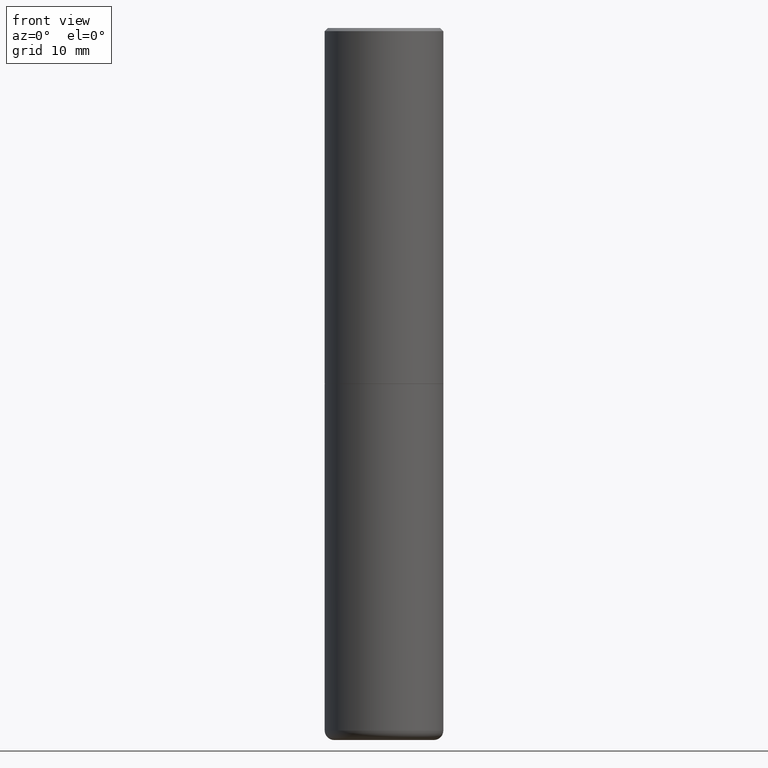
[diagram: clean part render]
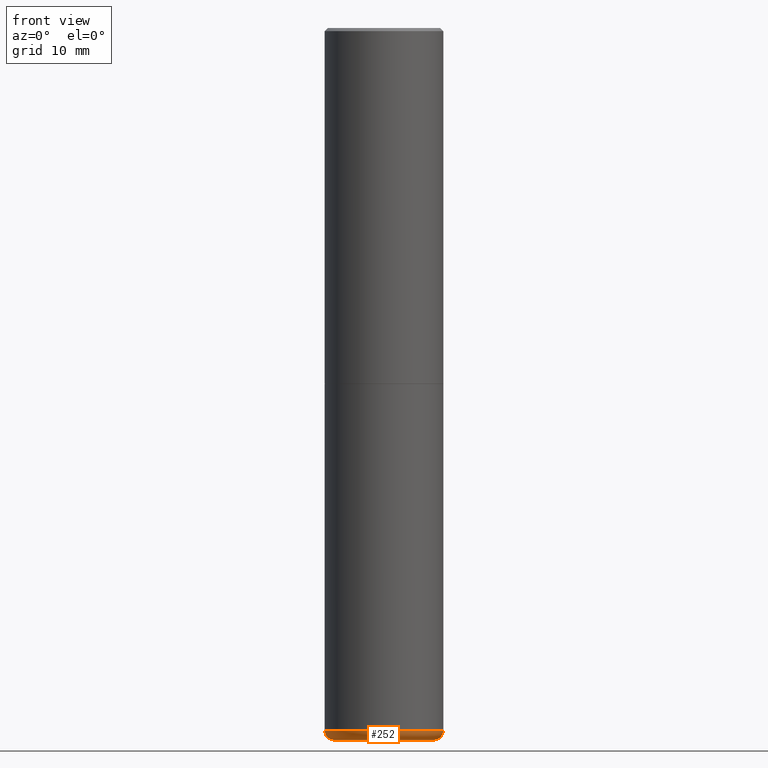
[diagram: same view with one face highlighted and labeled with its STEP entity id]
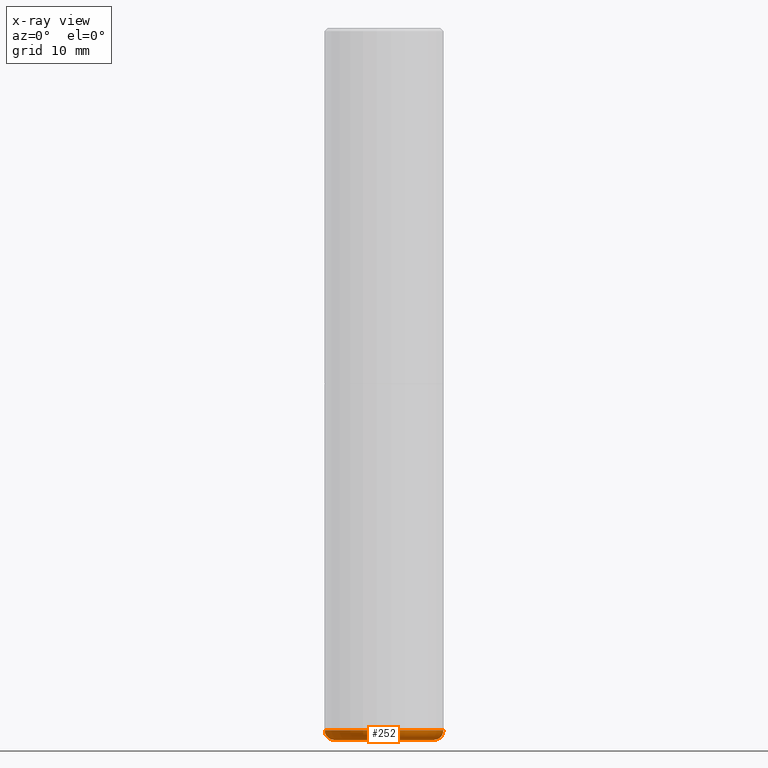
[diagram: x-ray of the same camera — body ghosted, the highlighted face saturated]
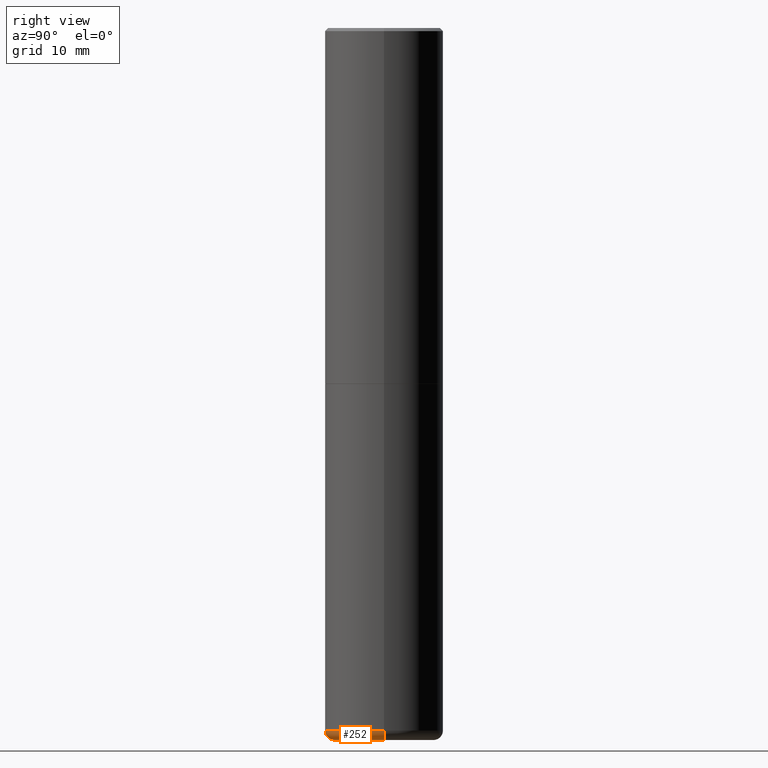
[diagram: same view with one face highlighted and labeled with its STEP entity id]
A machine part, front view. The second image highlights one B-rep face of the part: STEP entity #252.
The next image is the same camera in x-ray: the body ghosted, the highlighted face saturated — about 0% of this face is hidden behind the body in this view.
A second angle (right view) of the same face is appended — the face is thin or edge-on in the first view.
In plain terms, the highlighted toroidal blend (fillet) surface has major radius 8.001 mm and minor (blend) radius 1.524 mm.
Its self-contained STEP definition (entity closure, byte-faithful):
#19 = CARTESIAN_POINT ( 'NONE',  ( 1.100460962783311244E-28, -1.571166602479415374E-14, -4.499999999999999112 ) ) ;
#25 = EDGE_CURVE ( 'NONE', #222, #342, #45, .T. ) ;
#37 = AXIS2_PLACEMENT_3D ( 'NONE', #19, #49, #276 ) ;
#45 = CIRCLE ( 'NONE', #37, 0.3150000000000000577 ) ;
#49 = DIRECTION ( 'NONE',  ( -2.445468806185136597E-29, 3.491481338843145583E-15, 1.000000000000000000 ) ) ;
#63 = ORIENTED_EDGE ( 'NONE', *, *, #192, .T. ) ;
#69 = ORIENTED_EDGE ( 'NONE', *, *, #109, .F. ) ;
#75 = DIRECTION ( 'NONE',  ( 7.105427357601001859E-15, 1.000000000000000000, -3.491481338843145583E-15 ) ) ;
#81 = EDGE_LOOP ( 'NONE', ( #69, #347, #63, #236 ) ) ;
#104 = TOROIDAL_SURFACE ( 'NONE', #126, 0.3150000000000000577, 0.05999999999999966471 ) ;
#106 = CARTESIAN_POINT ( 'NONE',  ( 1.085788149946200541E-28, -1.550217714446356700E-14, -4.440000000000000391 ) ) ;
#107 = CARTESIAN_POINT ( 'NONE',  ( 1.085788149946200541E-28, -1.550217714446356700E-14, -4.440000000000000391 ) ) ;
#109 = EDGE_CURVE ( 'NONE', #222, #154, #418, .T. ) ;
#112 = FACE_OUTER_BOUND ( 'NONE', #81, .T. ) ;
#126 = AXIS2_PLACEMENT_3D ( 'NONE', #107, #238, #319 ) ;
#132 = CARTESIAN_POINT ( 'NONE',  ( -0.3749999999999998335, -1.283764188536319288E-14, -4.440000000000000391 ) ) ;
#137 = CARTESIAN_POINT ( 'NONE',  ( 0.3749999999999998335, -1.812078814859591702E-14, -4.440000000000000391 ) ) ;
#152 = CIRCLE ( 'NONE', #328, 0.3750000000000000555 ) ;
#154 = VERTEX_POINT ( 'NONE', #132 ) ;
#180 = DIRECTION ( 'NONE',  ( 1.000000000000000000, -6.982962677686246200E-15, 0.000000000000000000 ) ) ;
#192 = EDGE_CURVE ( 'NONE', #342, #258, #249, .T. ) ;
#195 = CARTESIAN_POINT ( 'NONE',  ( 0.3150000000000000577, -1.791129926826532712E-14, -4.499999999999999112 ) ) ;
#207 = DIRECTION ( 'NONE',  ( -6.982962677686266711E-15, -1.000000000000000000, 3.491481338843145583E-15 ) ) ;
#222 = VERTEX_POINT ( 'NONE', #242 ) ;
#236 = ORIENTED_EDGE ( 'NONE', *, *, #395, .F. ) ;
#238 = DIRECTION ( 'NONE',  ( -2.445468806185136597E-29, 3.491481338843145583E-15, 1.000000000000000000 ) ) ;
#242 = CARTESIAN_POINT ( 'NONE',  ( -0.3150000000000000577, -1.315554914625651808E-14, -4.499999999999999112 ) ) ;
#249 = CIRCLE ( 'NONE', #313, 0.05999999999999963002 ) ;
#252 = ADVANCED_FACE ( 'NONE', ( #112 ), #104, .T. ) ;
#256 = AXIS2_PLACEMENT_3D ( 'NONE', #375, #75, #336 ) ;
#258 = VERTEX_POINT ( 'NONE', #137 ) ;
#276 = DIRECTION ( 'NONE',  ( 1.000000000000000000, -6.982962677686261189E-15, 0.000000000000000000 ) ) ;
#301 = DIRECTION ( 'NONE',  ( 1.000000000000000000, -6.982962677686266711E-15, 0.000000000000000000 ) ) ;
#313 = AXIS2_PLACEMENT_3D ( 'NONE', #361, #207, #180 ) ;
#319 = DIRECTION ( 'NONE',  ( 1.000000000000000000, -6.982962677686263555E-15, 4.883557194083111219E-29 ) ) ;
#328 = AXIS2_PLACEMENT_3D ( 'NONE', #106, #365, #301 ) ;
#336 = DIRECTION ( 'NONE',  ( -1.000000000000000000, 7.105427357601001859E-15, 0.000000000000000000 ) ) ;
#342 = VERTEX_POINT ( 'NONE', #195 ) ;
#347 = ORIENTED_EDGE ( 'NONE', *, *, #25, .T. ) ;
#361 = CARTESIAN_POINT ( 'NONE',  ( 0.3150000000000000577, -1.770181038793474354E-14, -4.440000000000000391 ) ) ;
#365 = DIRECTION ( 'NONE',  ( -2.445468806185136597E-29, 3.491481338843145583E-15, 1.000000000000000000 ) ) ;
#375 = CARTESIAN_POINT ( 'NONE',  ( -0.3150000000000000577, -1.326396752681925180E-14, -4.440000000000000391 ) ) ;
#395 = EDGE_CURVE ( 'NONE', #154, #258, #152, .T. ) ;
#418 = CIRCLE ( 'NONE', #256, 0.05999999999999963002 ) ;